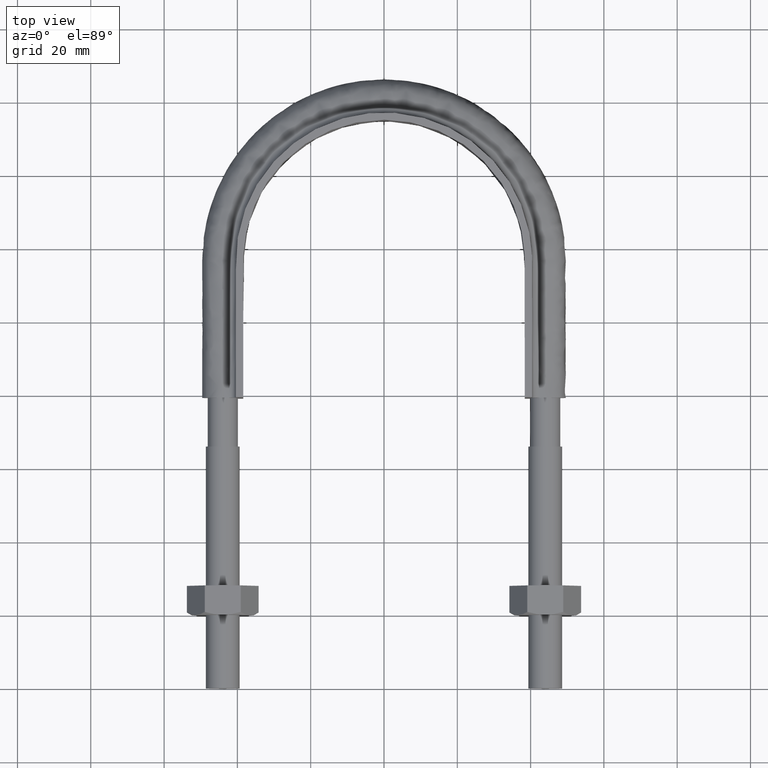
[diagram: clean part render]
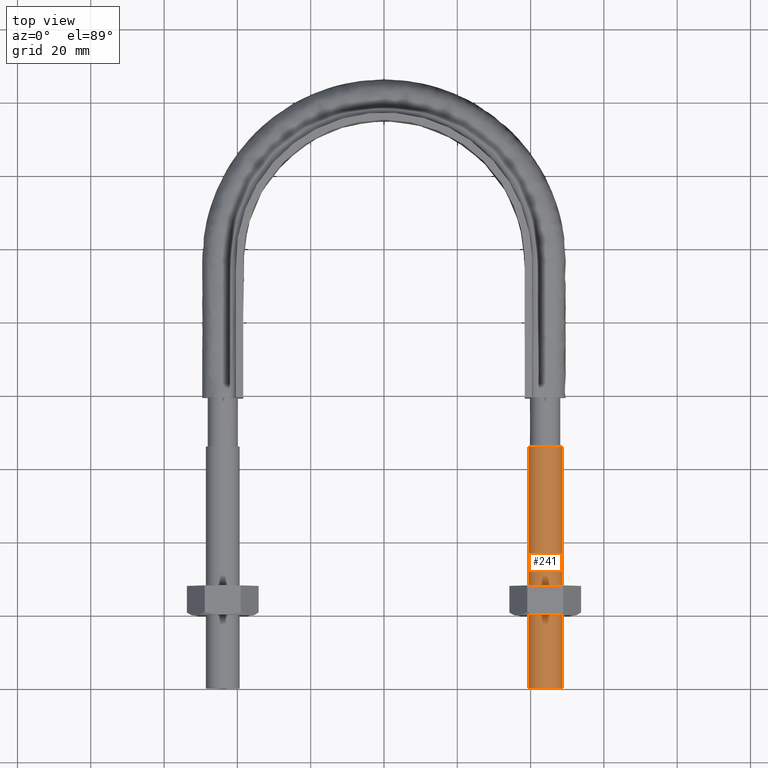
[diagram: same view with one face highlighted and labeled with its STEP entity id]
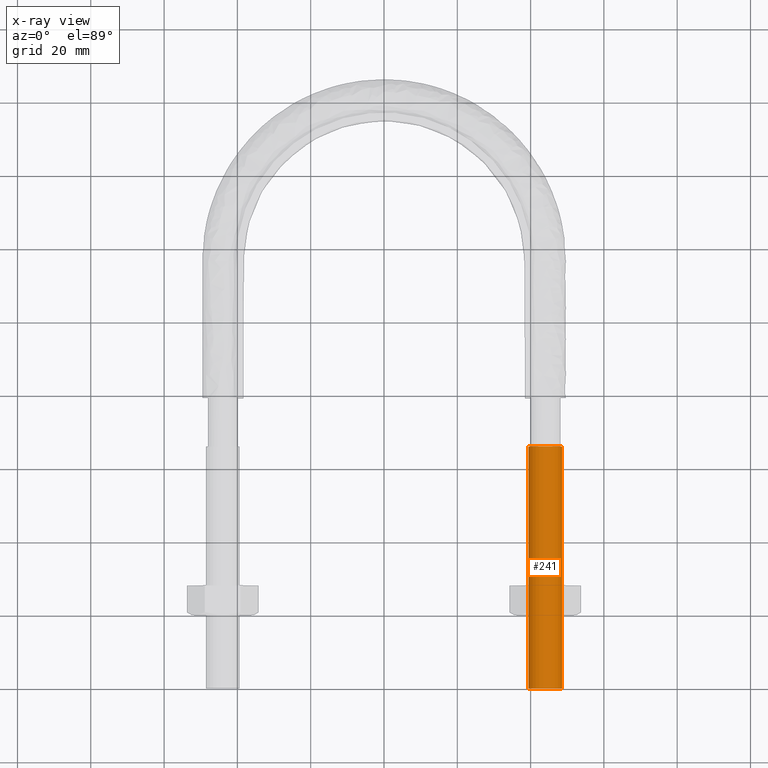
[diagram: x-ray of the same camera — body ghosted, the highlighted face saturated]
A machine part, top view. The second image highlights one B-rep face of the part: STEP entity #241.
The next image is the same camera in x-ray: the body ghosted, the highlighted face saturated — about 0% of this face is hidden behind the body in this view.
In plain terms, the highlighted cylindrical surface (bore or boss wall) has radius 4.6 mm, axis along (-0, -1, -0).
Its self-contained STEP definition (entity closure, byte-faithful):
#241 = ADVANCED_FACE( '', ( #344, #345 ), #346, .T. );
#344 = FACE_OUTER_BOUND( '', #1187, .T. );
#345 = FACE_OUTER_BOUND( '', #1188, .T. );
#346 = CYLINDRICAL_SURFACE( '', #1189, 4.60000000000000 );
#1187 = EDGE_LOOP( '', ( #1459 ) );
#1188 = EDGE_LOOP( '', ( #1460 ) );
#1189 = AXIS2_PLACEMENT_3D( '', #1461, #1462, #1463 );
#1459 = ORIENTED_EDGE( '', *, *, #1882, .F. );
#1460 = ORIENTED_EDGE( '', *, *, #1861, .T. );
#1461 = CARTESIAN_POINT( '', ( 44.0000000000000, 66.0000000000000, 4.07181612645940E-015 ) );
#1462 = DIRECTION( '', ( -2.44921270764475E-016, -1.00000000000000, -6.12303176911189E-017 ) );
#1463 = DIRECTION( '', ( 1.00000000000000, -2.44921270764475E-016, -7.49830360911069E-033 ) );
#1861 = EDGE_CURVE( '', #2029, #2029, #2030, .T. );
#1882 = EDGE_CURVE( '', #2057, #2057, #2058, .T. );
#2029 = VERTEX_POINT( '', #2477 );
#2030 = CIRCLE( '', #2478, 4.60000000000000 );
#2057 = VERTEX_POINT( '', #2544 );
#2058 = CIRCLE( '', #2545, 4.60000000000000 );
#2477 = CARTESIAN_POINT( '', ( 48.6000000000000, 66.0000000000000, 4.07181612645940E-015 ) );
#2478 = AXIS2_PLACEMENT_3D( '', #2911, #2912, #2913 );
#2544 = CARTESIAN_POINT( '', ( 48.6000000000000, -1.19031737591535E-014, 3.06151588455591E-017 ) );
#2545 = AXIS2_PLACEMENT_3D( '', #2935, #2936, #2937 );
#2911 = CARTESIAN_POINT( '', ( 44.0000000000000, 66.0000000000000, 4.07181612645940E-015 ) );
#2912 = DIRECTION( '', ( -2.44921270764475E-016, -1.00000000000000, -6.12303176911189E-017 ) );
#2913 = DIRECTION( '', ( 1.00000000000000, -2.44921270764475E-016, -7.49830360911069E-033 ) );
#2935 = CARTESIAN_POINT( '', ( 44.0000000000000, -1.07765359136369E-014, 3.06151588455591E-017 ) );
#2936 = DIRECTION( '', ( -2.44921270764475E-016, -1.00000000000000, -6.12303176911189E-017 ) );
#2937 = DIRECTION( '', ( 1.00000000000000, -2.44921270764475E-016, -7.49830360911069E-033 ) );